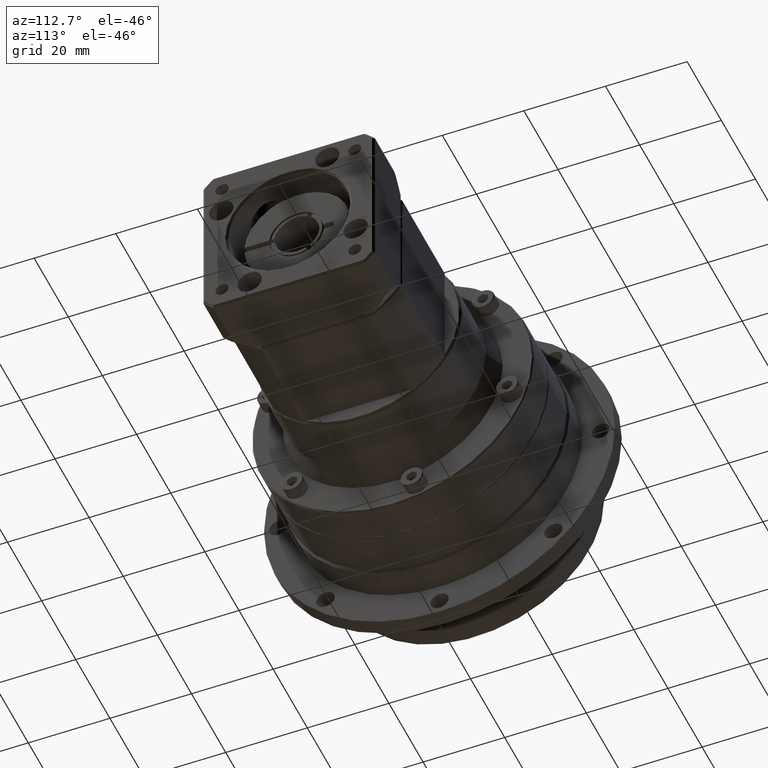
[diagram: clean part render]
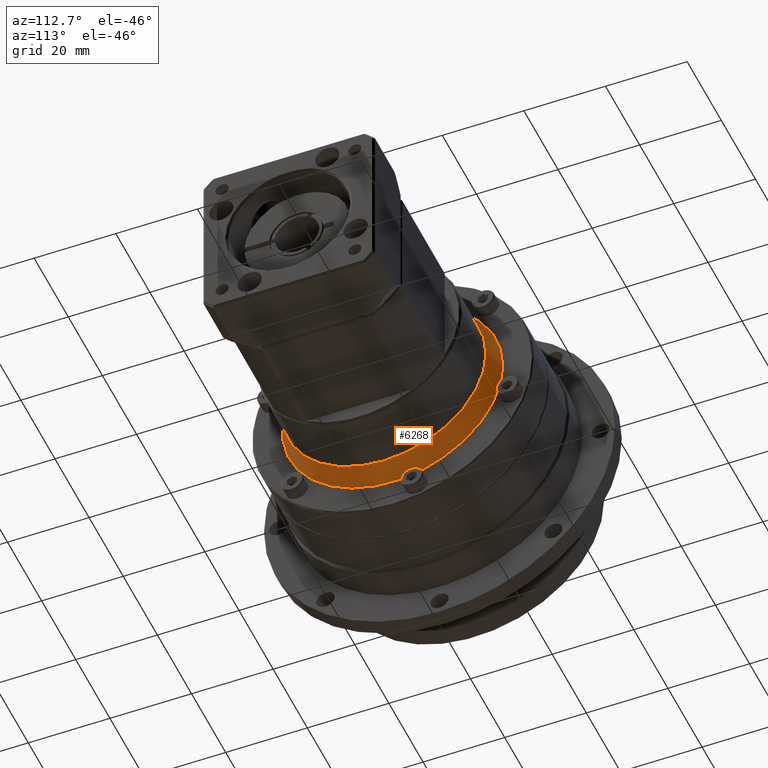
[diagram: same view with one face highlighted and labeled with its STEP entity id]
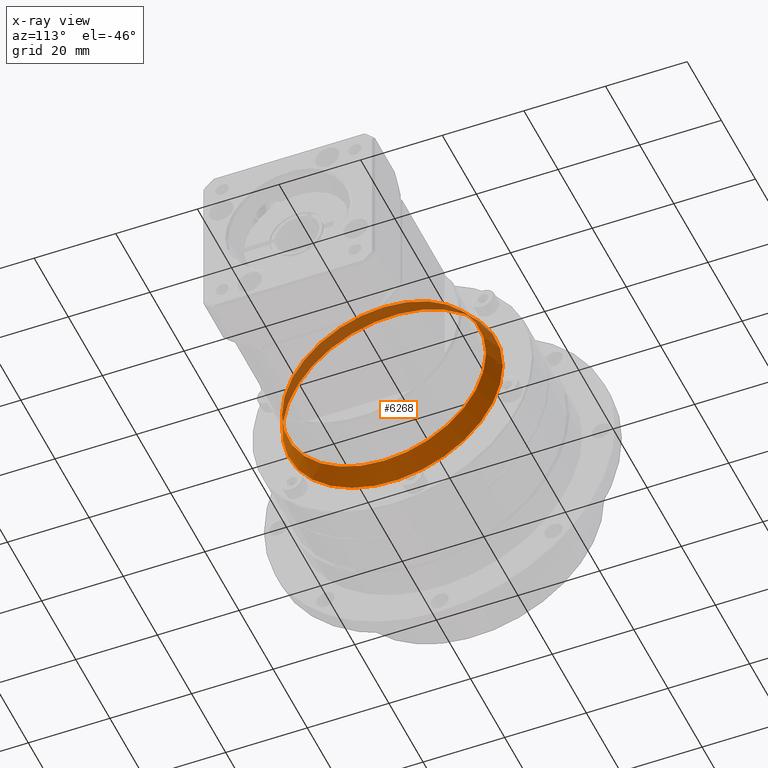
[diagram: x-ray of the same camera — body ghosted, the highlighted face saturated]
A machine part, auxiliary view. The second image highlights one B-rep face of the part: STEP entity #6268.
The next image is the same camera in x-ray: the body ghosted, the highlighted face saturated — about 25% of this face is hidden behind the body in this view.
In plain terms, the highlighted conical surface has half-angle 21.801 deg.
Its self-contained STEP definition (entity closure, byte-faithful):
#252=CONICAL_SURFACE('',#7017,26.,21.8014094863518);
#1189=FACE_BOUND('',#2217,.T.);
#1587=FACE_OUTER_BOUND('',#2216,.T.);
#2216=EDGE_LOOP('',(#5210));
#2217=EDGE_LOOP('',(#5211));
#2683=CIRCLE('',#7018,27.);
#2684=CIRCLE('',#7019,25.);
#3178=VERTEX_POINT('',#10716);
#3179=VERTEX_POINT('',#10718);
#3892=EDGE_CURVE('',#3178,#3178,#2683,.T.);
#3893=EDGE_CURVE('',#3179,#3179,#2684,.T.);
#5210=ORIENTED_EDGE('',*,*,#3892,.T.);
#5211=ORIENTED_EDGE('',*,*,#3893,.F.);
#6268=ADVANCED_FACE('',(#1587,#1189),#252,.T.);
#7017=AXIS2_PLACEMENT_3D('',#10715,#8644,#8645);
#7018=AXIS2_PLACEMENT_3D('',#10717,#8646,#8647);
#7019=AXIS2_PLACEMENT_3D('',#10719,#8648,#8649);
#8644=DIRECTION('center_axis',(-1.,-4.41629895221907E-16,1.00909480739036E-15));
#8645=DIRECTION('ref_axis',(-4.41629895222035E-16,1.,-1.26735427707914E-13));
#8646=DIRECTION('center_axis',(1.,4.41629895221907E-16,-1.00909480739036E-15));
#8647=DIRECTION('ref_axis',(-1.00909480739031E-15,-1.26735427707914E-13,
-1.));
#8648=DIRECTION('center_axis',(1.,4.41629895221907E-16,-1.00909480739036E-15));
#8649=DIRECTION('ref_axis',(-1.00909480739031E-15,-1.26735427707914E-13,
-1.));
#10715=CARTESIAN_POINT('Origin',(29.9837605327069,-19.2502964923671,20.3816875810054));
#10716=CARTESIAN_POINT('',(27.4837605327069,7.74970350763291,20.381687581002));
#10717=CARTESIAN_POINT('Origin',(27.4837605327069,-19.2502964923671,20.3816875810054));
#10718=CARTESIAN_POINT('',(32.4837605327069,5.74970350763291,20.3816875810022));
#10719=CARTESIAN_POINT('Origin',(32.4837605327069,-19.2502964923671,20.3816875810054));